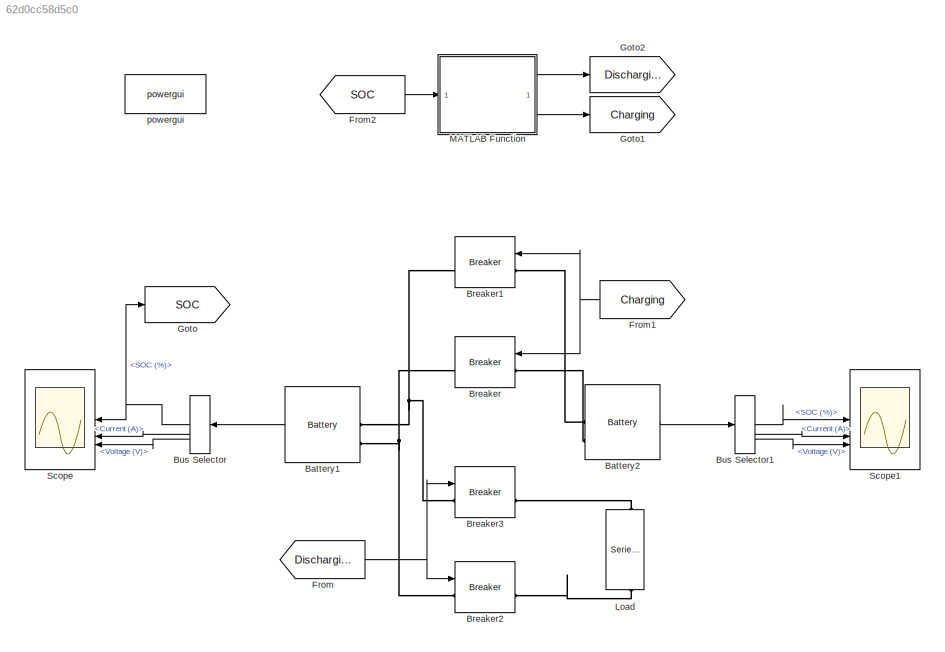
MODEL slx_62d0cc58d5c0
KIND model
CONFIG AbsTol = auto
CONFIG EnableMultiTasking = off
CONFIG FixedStep = auto
CONFIG MaxStep = auto
CONFIG MinStep = auto
CONFIG RelTol = 1e-3
CONFIG SampleTimeConstraint = Unconstrained
CONFIG SolverName = VariableStepAuto
CONFIG StartTime = 0.0
CONFIG StopTime = 280000
BLOCK [Reference] Battery1  REF=spsBatteryLib/Battery
  LibrarySourceBlock = sps_lib/Sources/Battery
  SourceBlock = spsBatteryLib/Battery
  SourceType = Battery
BLOCK [Reference] Battery2  REF=spsBatteryLib/Battery
  LibrarySourceBlock = sps_lib/Sources/Battery
  SourceBlock = spsBatteryLib/Battery
  SourceType = Battery
BLOCK [Reference] Breaker  REF=spsBreakerLib/Breaker
  LibrarySourceBlock = sps_lib/Power Grid Elements/Breaker
  SourceBlock = spsBreakerLib/Breaker
  SourceType = Breaker
BLOCK [Reference] Breaker1  REF=spsBreakerLib/Breaker
  LibrarySourceBlock = sps_lib/Power Grid Elements/Breaker
  SourceBlock = spsBreakerLib/Breaker
  SourceType = Breaker
BLOCK [Reference] Breaker2  REF=spsBreakerLib/Breaker
  LibrarySourceBlock = sps_lib/Power Grid Elements/Breaker
  SourceBlock = spsBreakerLib/Breaker
  SourceType = Breaker
BLOCK [Reference] Breaker3  REF=spsBreakerLib/Breaker
  LibrarySourceBlock = sps_lib/Power Grid Elements/Breaker
  SourceBlock = spsBreakerLib/Breaker
  SourceType = Breaker
BLOCK [BusSelector] Bus Selector
  OutputSignals = SOC (%),Current (A),Voltage (V)
BLOCK [BusSelector] Bus Selector1
  OutputSignals = SOC (%),Current (A),Voltage (V)
BLOCK [From] From
  GotoTag = Discharging
BLOCK [From] From1
  GotoTag = Charging
BLOCK [From] From2
  GotoTag = SOC
BLOCK [Goto] Goto
  GotoTag = SOC
BLOCK [Goto] Goto1
  GotoTag = Charging
BLOCK [Goto] Goto2
  GotoTag = Discharging
BLOCK [Reference] Load  REF=spsSeriesRLCBranchLib/Series RLC Branch
  LibrarySourceBlock = sps_lib/Passives/Series RLC Branch
  NameLocation = right
  SourceBlock = spsSeriesRLCBranchLib/Series RLC Branch
  SourceType = Series RLC Branch
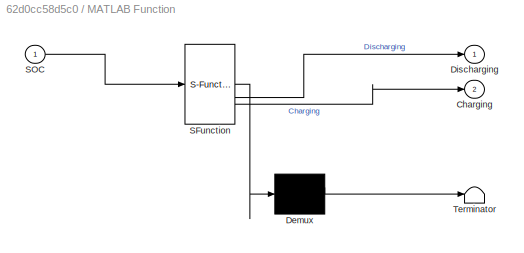
BLOCK [SubSystem] MATLAB Function
  ErrorFcn = Stateflow.Translate.translate
  LibrarySourceBlock = simulink/User-Defined\nFunctions/MATLAB Function
  PermitHierarchicalResolution = ExplicitOnly
  SFBlockType = MATLAB Function
  TreatAsAtomicUnit = on
BLOCK [Demux] MATLAB Function/ Demux 
  Outputs = 1
BLOCK [S-Function] MATLAB Function/ SFunction 
  EnableBusSupport = on
  FunctionName = sf_sfun
  PortCounts = [1 3]
  SFcnIsStateOwnerBlock = off
  SFunctionDeploymentMode = off
  Tag = Stateflow S-Function 2
BLOCK [Terminator] MATLAB Function/ Terminator 
BLOCK [Outport] MATLAB Function/Charging
  Port = 2
BLOCK [Outport] MATLAB Function/Discharging
BLOCK [Inport] MATLAB Function/SOC
BLOCK [Scope] Scope
  Floating = off
  NumInputPorts = 3
  ScopeSpecificationString = Simulink.scopes.TimeScopeBlockCfg('CurrentConfiguration', extmgr.ConfigurationSet(extmgr.Configuration('Core','General UI',true),extmgr.Configuration('Core','Source UI',true),extmgr.Configuration('Sources','WiredSimulink',true),extmgr.Configuration('Visuals','Time Domain',true,'SerializedDisplays',{struct('MinYLimReal','88.74993','MaxYLimReal','101.25001','YLabelReal','','MinYLimMag','88.74993','M...<+2703ch>
BLOCK [Scope] Scope1
  Floating = off
  NumInputPorts = 3
  ScopeSpecificationString = Simulink.scopes.TimeScopeBlockCfg('CurrentConfiguration', extmgr.ConfigurationSet(extmgr.Configuration('Core','General UI',true),extmgr.Configuration('Core','Source UI',true),extmgr.Configuration('Sources','WiredSimulink',true,'DataLoggingVariableName','ScopeData1'),extmgr.Configuration('Visuals','Time Domain',true),extmgr.Configuration('Tools','Plot Navigation',true),extmgr.Configuration('Tools',...<+40ch>
BLOCK [Reference] powergui  REF=sps_lib/powergui
  Priority = 1
  SourceBlock = sps_lib/powergui
  SourceType = PSB option menu block
LINE Battery1:1 -> Bus Selector:1
LINE Battery2:1 -> Bus Selector1:1
LINE Bus Selector1:1 -> Scope1:1
LINE Bus Selector1:2 -> Scope1:2
LINE Bus Selector1:3 -> Scope1:3
NET Bus Selector:1 -> Goto:1, Scope:1
LINE Bus Selector:2 -> Scope:2
LINE Bus Selector:3 -> Scope:3
NET From1:1 -> Breaker1:1, Breaker:1
LINE From2:1 -> MATLAB Function:1
NET From:1 -> Breaker2:1, Breaker3:1
LINE MATLAB Function:1 -> Goto2:1
LINE MATLAB Function:2 -> Goto1:1
PNET net1: Battery1:LConn1 -- Breaker1:RConn1 -- Breaker3:LConn1
PNET net2: Battery1:LConn2 -- Breaker2:LConn1 -- Breaker:RConn1
PLINE Battery2:LConn1 -- Breaker1:LConn1
PLINE Battery2:LConn2 -- Breaker:LConn1
PLINE Breaker2:RConn1 -- Load:LConn1
PLINE Breaker3:RConn1 -- Load:RConn1
note: NET lines group one-source signal fan-out (src -> all destinations, sorted); 1:1 wires keep LINE; PNET lines group multi-terminal physical nets as a canonical sorted terminal list (undirected conserving connections); 2-terminal nets keep the pairwise PLINE form
CHART MATLAB Function states=1 transitions=1
  STATE_LABEL 'eML_blk_kernel()'
  STATE_LABEL 'SCRIPT:\nfunction [Discharging,Charging] = fcn(SOC)\n\nDischarging=1;\nCharging=0;\nif (SOC>=95)\n    Discharging=1;\n    Charging=0;\nend\nif (SOC<90)\n    Discharging=0;\n    Charging=1;\nend\n'
CHART  states=0 transitions=0
